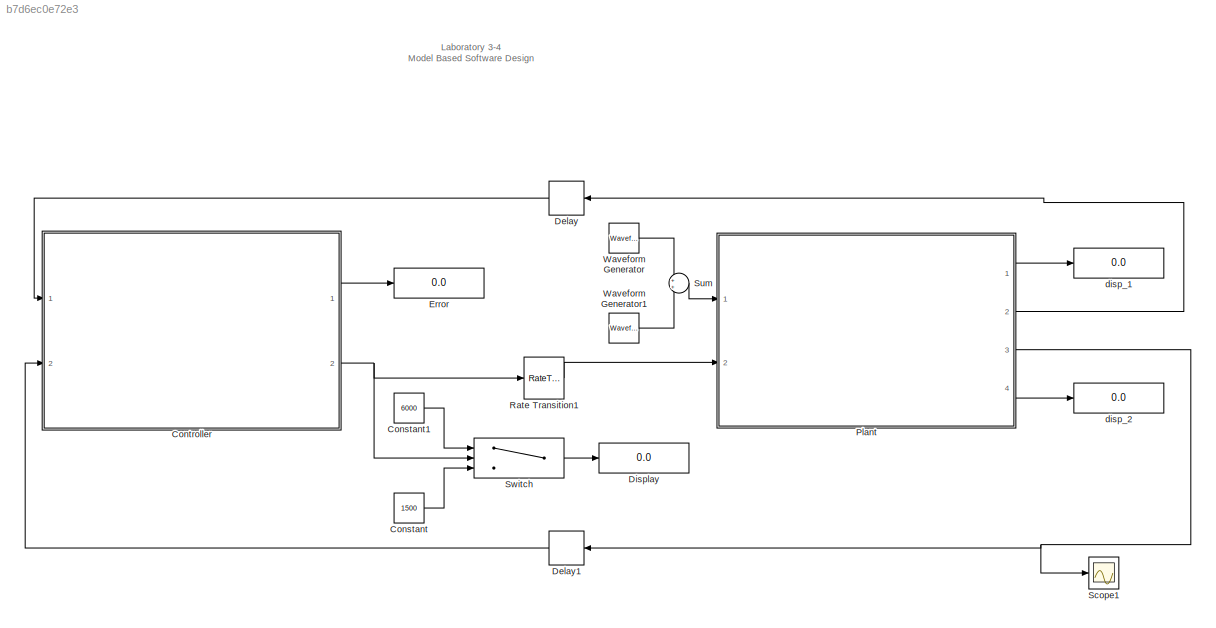
MODEL slx_b7d6ec0e72e3
KIND model
CONFIG AbsTol = auto
CONFIG EnableMultiTasking = off
CONFIG FixedStep = 1/10
CONFIG MaxStep = auto
CONFIG MinStep = auto
CONFIG RelTol = 1e-3
CONFIG SampleTimeConstraint = Unconstrained
CONFIG SolverName = VariableStepAuto
CONFIG StartTime = 0.0
CONFIG StopTime = inf
BLOCK [Constant] Constant
  Value = 1500
BLOCK [Constant] Constant1
  Value = 6000
BLOCK [ModelReference] Controller
  ModelNameDialog = controller
  ModelReferenceVersion = 1.16
  Ports = [2, 2]
BLOCK [Delay] Delay
  DelayLength = 1
  InputPortMap = u0
  NameLocation = top
  Ports = [1, 1]
BLOCK [Delay] Delay1
  DelayLength = 1
  InputPortMap = u0
  NameLocation = top
  Ports = [1, 1]
BLOCK [Display] Display
  Decimation = 1
  Ports = [1]
BLOCK [Display] Error
  Decimation = 1
  Ports = [1]
BLOCK [ModelReference] Plant
  ModelNameDialog = plant
  ModelReferenceVersion = 1.14
  Ports = [2, 4]
BLOCK [RateTransition] Rate Transition1
BLOCK [Scope] Scope1
  Floating = off
  NumInputPorts = 1
  Ports = [1]
  ScopeSpecificationString = Simulink.scopes.TimeScopeBlockCfg('CurrentConfiguration', extmgr.ConfigurationSet(extmgr.Configuration('Core','General UI',true),extmgr.Configuration('Core','Source UI',true),extmgr.Configuration('Sources','WiredSimulink',true),extmgr.Configuration('Visuals','Time Domain',true,'SerializedDisplays',{struct('MinYLimReal','-0.77892','MaxYLimReal','0.6913','YLabelReal','','MinYLimMag','0.00000','MaxYL...<+1347ch>
BLOCK [Sum] Sum
  Ports = [2, 1]
BLOCK [Switch] Switch
  InputSameDT = off
  SaturateOnIntegerOverflow = off
  Threshold = 0.5
BLOCK [Reference] Waveform Generator  REF=simulink/Sources/Waveform
Generator
  Ports = [0, 1]
  SourceBlock = simulink/Sources/Waveform\nGenerator
  SourceProductBaseCode = SL
  SourceType = WaveformGenerator
BLOCK [Reference] Waveform Generator1  REF=simulink/Sources/Waveform
Generator
  Ports = [0, 1]
  SourceBlock = simulink/Sources/Waveform\nGenerator
  SourceProductBaseCode = SL
  SourceType = WaveformGenerator
BLOCK [Display] disp_1
  Decimation = 1
  Ports = [1]
BLOCK [Display] disp_2
  Decimation = 1
  Ports = [1]
ANNOTATION (root): Laboratory 3-4 Model Based Software Design
LINE Constant1:1 -> Switch:1
LINE Constant:1 -> Switch:3
LINE Controller:1 -> Error:1
NET Controller:2 -> Rate Transition1:1, Switch:2
LINE Delay1:1 -> Controller:2
LINE Delay:1 -> Controller:1
LINE Plant:1 -> disp_1:1
LINE Plant:2 -> Delay:1
NET Plant:3 -> Delay1:1, Scope1:1
LINE Plant:4 -> disp_2:1
LINE Rate Transition1:1 -> Plant:2
LINE Sum:1 -> Plant:1
LINE Switch:1 -> Display:1
LINE Waveform Generator1:1 -> Sum:2
LINE Waveform Generator:1 -> Sum:1
note: NET lines group one-source signal fan-out (src -> all destinations, sorted); 1:1 wires keep LINE
